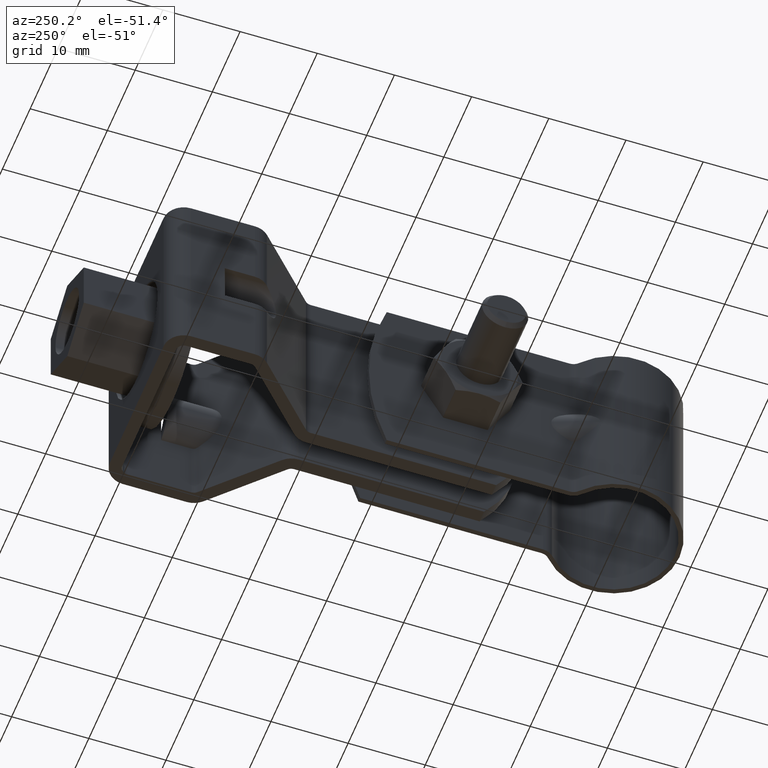
[diagram: clean part render]
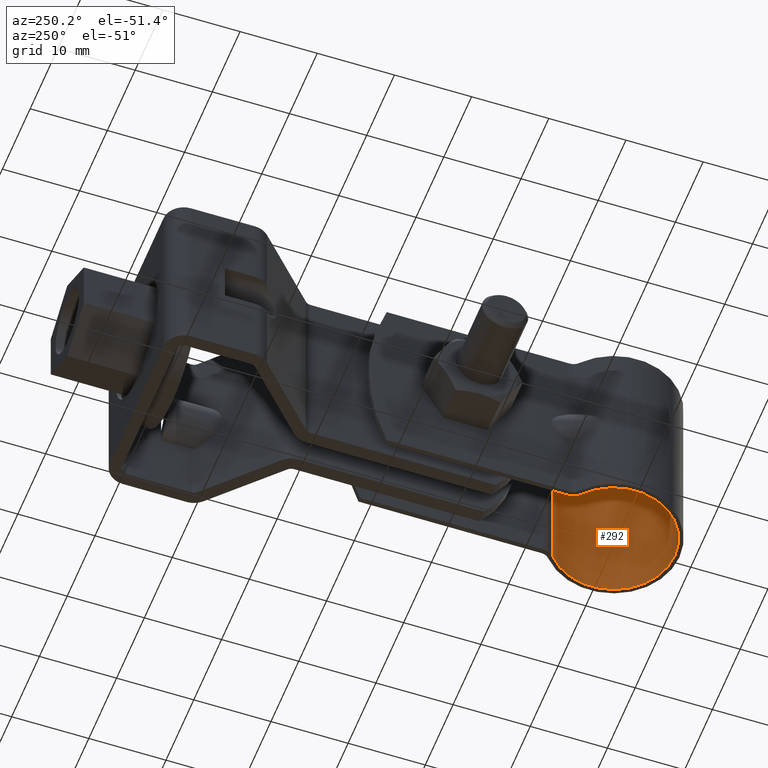
[diagram: same view with one face highlighted and labeled with its STEP entity id]
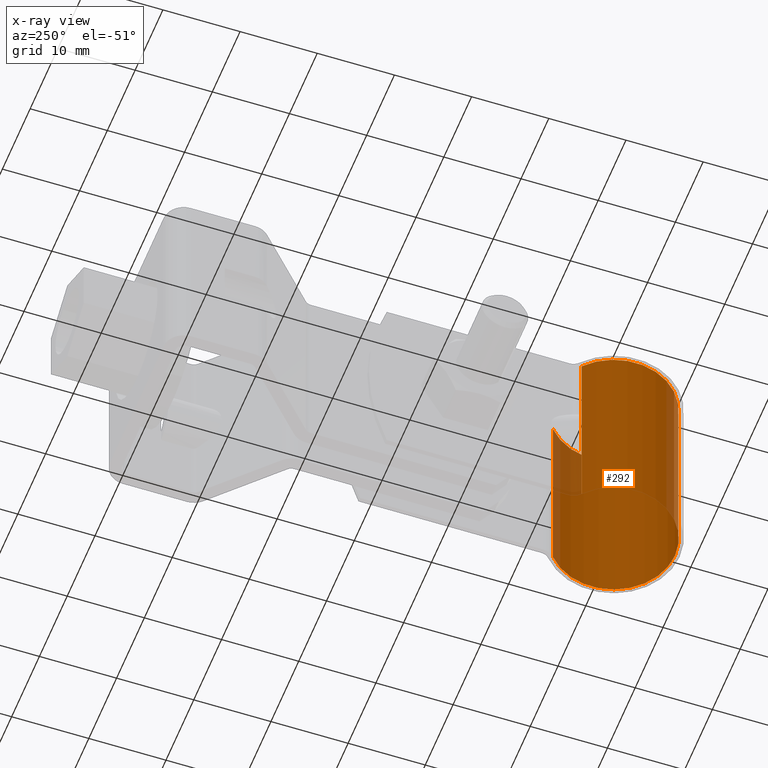
[diagram: x-ray of the same camera — body ghosted, the highlighted face saturated]
A machine part, auxiliary view. The second image highlights one B-rep face of the part: STEP entity #292.
The next image is the same camera in x-ray: the body ghosted, the highlighted face saturated — about 6% of this face is hidden behind the body in this view.
In plain terms, the highlighted cylindrical surface (partial cylindrical patch) has radius 7.94 mm, axis along (0, 0, -1).
Its self-contained STEP definition (entity closure, byte-faithful):
#292 = ADVANCED_FACE( '', ( #438 ), #439, .F. );
#438 = FACE_OUTER_BOUND( '', #702, .T. );
#439 = CYLINDRICAL_SURFACE( '', #703, 7.94000000000000 );
#702 = EDGE_LOOP( '', ( #1115, #1116, #1117, #1118 ) );
#703 = AXIS2_PLACEMENT_3D( '', #1119, #1120, #1121 );
#1115 = ORIENTED_EDGE( '', *, *, #1927, .T. );
#1116 = ORIENTED_EDGE( '', *, *, #1899, .F. );
#1117 = ORIENTED_EDGE( '', *, *, #1878, .F. );
#1118 = ORIENTED_EDGE( '', *, *, #1929, .T. );
#1119 = CARTESIAN_POINT( '', ( 0.000000000000000, 0.000000000000000, -12.5000000000000 ) );
#1120 = DIRECTION( '', ( 0.000000000000000, 0.000000000000000, -1.00000000000000 ) );
#1121 = DIRECTION( '', ( -1.00000000000000, 6.06692130572647E-017, 0.000000000000000 ) );
#1878 = EDGE_CURVE( '', #2229, #2231, #2232, .T. );
#1899 = EDGE_CURVE( '', #2231, #2269, #2270, .T. );
#1927 = EDGE_CURVE( '', #2311, #2269, #2312, .T. );
#1929 = EDGE_CURVE( '', #2229, #2311, #2314, .T. );
#2229 = VERTEX_POINT( '', #2740 );
#2231 = VERTEX_POINT( '', #2742 );
#2232 = CIRCLE( '', #2743, 7.94000000000000 );
#2269 = VERTEX_POINT( '', #2829 );
#2270 = LINE( '', #2830, #2831 );
#2311 = VERTEX_POINT( '', #2888 );
#2312 = CIRCLE( '', #2889, 7.94000000000000 );
#2314 = LINE( '', #2891, #2892 );
#2740 = CARTESIAN_POINT( '', ( -5.19215291750504, 6.00709148267647, -12.5000000000000 ) );
#2742 = CARTESIAN_POINT( '', ( 5.19215291750503, 6.00709148267646, -12.5000000000000 ) );
#2743 = AXIS2_PLACEMENT_3D( '', #3565, #3566, #3567 );
#2829 = CARTESIAN_POINT( '', ( 5.19215291750503, 6.00709148267646, 12.5000000000000 ) );
#2830 = CARTESIAN_POINT( '', ( 5.19215291750503, 6.00709148267646, -12.5000000000000 ) );
#2831 = VECTOR( '', #3608, 1000.00000000000 );
#2888 = CARTESIAN_POINT( '', ( -5.19215291750504, 6.00709148267647, 12.5000000000000 ) );
#2889 = AXIS2_PLACEMENT_3D( '', #3658, #3659, #3660 );
#2891 = CARTESIAN_POINT( '', ( -5.19215291750504, 6.00709148267647, -12.5000000000000 ) );
#2892 = VECTOR( '', #3664, 1000.00000000000 );
#3565 = CARTESIAN_POINT( '', ( 0.000000000000000, 0.000000000000000, -12.5000000000000 ) );
#3566 = DIRECTION( '', ( 0.000000000000000, 0.000000000000000, 1.00000000000000 ) );
#3567 = DIRECTION( '', ( 1.00000000000000, -6.06692130572647E-017, 0.000000000000000 ) );
#3608 = DIRECTION( '', ( 0.000000000000000, 0.000000000000000, 1.00000000000000 ) );
#3658 = CARTESIAN_POINT( '', ( 0.000000000000000, 0.000000000000000, 12.5000000000000 ) );
#3659 = DIRECTION( '', ( 0.000000000000000, 0.000000000000000, 1.00000000000000 ) );
#3660 = DIRECTION( '', ( 1.00000000000000, -6.06692130572647E-017, 0.000000000000000 ) );
#3664 = DIRECTION( '', ( 0.000000000000000, 0.000000000000000, 1.00000000000000 ) );